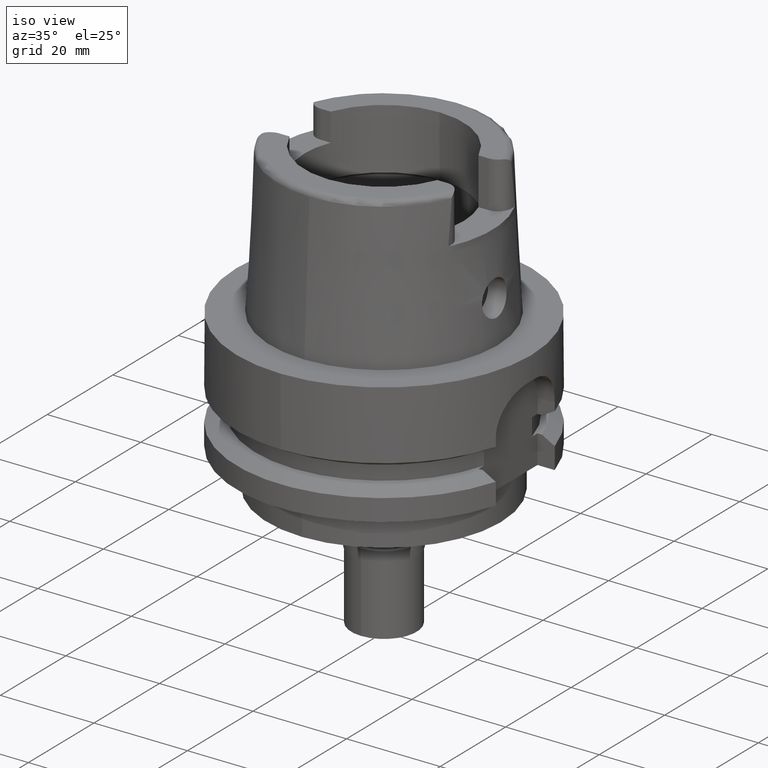
[diagram: clean part render]
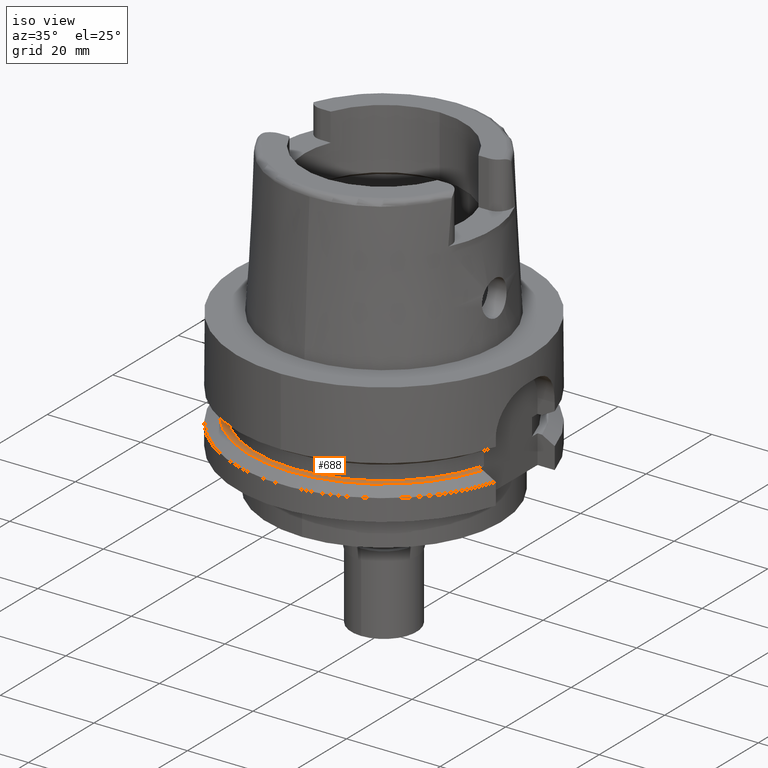
[diagram: same view with one face highlighted and labeled with its STEP entity id]
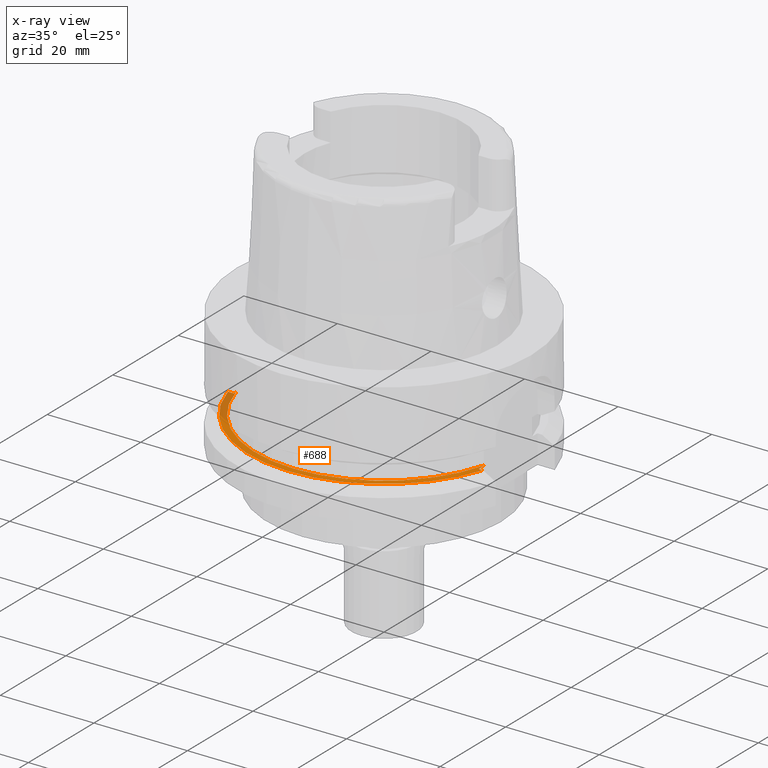
[diagram: x-ray of the same camera — body ghosted, the highlighted face saturated]
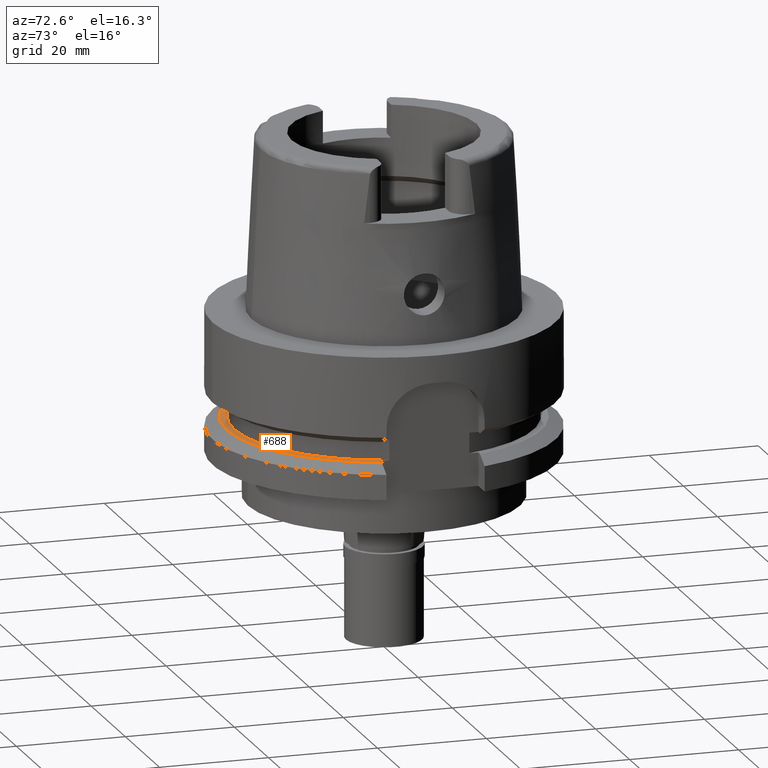
[diagram: same view with one face highlighted and labeled with its STEP entity id]
A machine part, iso view. The second image highlights one B-rep face of the part: STEP entity #688.
The next image is the same camera in x-ray: the body ghosted, the highlighted face saturated — about 15% of this face is hidden behind the body in this view.
A second angle (auxiliary view) of the same face is appended — the face is thin or edge-on in the first view.
In plain terms, the highlighted planar face has unit normal (0, 0, -1).
Its self-contained STEP definition (entity closure, byte-faithful):
#33 = EDGE_LOOP ( 'NONE', ( #2241, #4317, #1091, #2222, #1945, #3135 ) ) ;
#183 = CARTESIAN_POINT ( 'NONE',  ( -26.50000000000000000, -7.348469228349999938, -19.87500000000000000 ) ) ;
#317 = VERTEX_POINT ( 'NONE', #3697 ) ;
#451 = DIRECTION ( 'NONE',  ( -2.366280491871000116E-14, 1.000000000000000000, 0.0000000000000000000 ) ) ;
#476 = EDGE_CURVE ( 'NONE', #4747, #317, #4617, .T. ) ;
#540 = DIRECTION ( 'NONE',  ( 0.0000000000000000000, 0.0000000000000000000, -1.000000000000000000 ) ) ;
#570 = VECTOR ( 'NONE', #5339, 1000.000000000000000 ) ;
#581 = AXIS2_PLACEMENT_3D ( 'NONE', #3927, #5185, #4778 ) ;
#688 = ADVANCED_FACE ( 'NONE', ( #3495 ), #1850, .F. ) ;
#1091 = ORIENTED_EDGE ( 'NONE', *, *, #2513, .F. ) ;
#1137 = VERTEX_POINT ( 'NONE', #2064 ) ;
#1183 = VECTOR ( 'NONE', #4705, 1000.000000000000114 ) ;
#1195 = CIRCLE ( 'NONE', #581, 27.50000000000000000 ) ;
#1268 = LINE ( 'NONE', #3010, #1183 ) ;
#1316 = EDGE_CURVE ( 'NONE', #2112, #5514, #1874, .T. ) ;
#1354 = DIRECTION ( 'NONE',  ( 0.0000000000000000000, 0.0000000000000000000, -1.000000000000000000 ) ) ;
#1502 = DIRECTION ( 'NONE',  ( 0.0000000000000000000, -1.000000000000000000, 0.0000000000000000000 ) ) ;
#1706 = CARTESIAN_POINT ( 'NONE',  ( 26.50000000000000000, -9.000000000000000000, -19.87500000000000000 ) ) ;
#1850 = PLANE ( 'NONE',  #4633 ) ;
#1874 = LINE ( 'NONE', #4421, #5201 ) ;
#1929 = DIRECTION ( 'NONE',  ( 5.998158823386000371E-14, 1.000000000000000000, 1.090574331525000085E-14 ) ) ;
#1945 = ORIENTED_EDGE ( 'NONE', *, *, #4366, .F. ) ;
#1963 = EDGE_CURVE ( 'NONE', #2112, #4465, #1268, .T. ) ;
#2064 = CARTESIAN_POINT ( 'NONE',  ( 27.46035060384999937, -9.000000205979000967, -19.87500000000000000 ) ) ;
#2112 = VERTEX_POINT ( 'NONE', #2481 ) ;
#2222 = ORIENTED_EDGE ( 'NONE', *, *, #476, .T. ) ;
#2241 = ORIENTED_EDGE ( 'NONE', *, *, #1963, .T. ) ;
#2481 = CARTESIAN_POINT ( 'NONE',  ( -26.50000000000000000, -8.000000000000000000, -19.87500000000000000 ) ) ;
#2513 = EDGE_CURVE ( 'NONE', #4747, #1137, #2726, .T. ) ;
#2704 = CARTESIAN_POINT ( 'NONE',  ( 26.50000000000000000, -9.000000000000000000, -19.87500000000000000 ) ) ;
#2726 = LINE ( 'NONE', #4876, #570 ) ;
#3010 = CARTESIAN_POINT ( 'NONE',  ( -26.50000000000000000, -8.000000000000000000, -19.87500000000000000 ) ) ;
#3135 = ORIENTED_EDGE ( 'NONE', *, *, #1316, .F. ) ;
#3359 = CARTESIAN_POINT ( 'NONE',  ( -27.76816544269999909, -8.000000000000000000, -19.87500000000000000 ) ) ;
#3495 = FACE_OUTER_BOUND ( 'NONE', #33, .T. ) ;
#3616 = DIRECTION ( 'NONE',  ( 0.0000000000000000000, -1.000000000000000000, 0.0000000000000000000 ) ) ;
#3673 = CIRCLE ( 'NONE', #5278, 28.89759526419000224 ) ;
#3680 = VECTOR ( 'NONE', #451, 1000.000000000000000 ) ;
#3697 = CARTESIAN_POINT ( 'NONE',  ( 26.50000000000000000, -7.348469228349999938, -19.87500000000000000 ) ) ;
#3927 = CARTESIAN_POINT ( 'NONE',  ( 0.0000000000000000000, 0.0000000000000000000, -19.87500000000000000 ) ) ;
#4317 = ORIENTED_EDGE ( 'NONE', *, *, #4926, .F. ) ;
#4366 = EDGE_CURVE ( 'NONE', #5514, #317, #1195, .T. ) ;
#4421 = CARTESIAN_POINT ( 'NONE',  ( -26.50000000000000000, -8.000000000000000000, -19.87500000000000000 ) ) ;
#4465 = VERTEX_POINT ( 'NONE', #3359 ) ;
#4617 = LINE ( 'NONE', #1706, #3680 ) ;
#4633 = AXIS2_PLACEMENT_3D ( 'NONE', #5227, #1354, #3616 ) ;
#4705 = DIRECTION ( 'NONE',  ( -0.9999999999999215072, 3.959404086856082485E-07, 5.939057325660126490E-13 ) ) ;
#4747 = VERTEX_POINT ( 'NONE', #2704 ) ;
#4778 = DIRECTION ( 'NONE',  ( 0.0000000000000000000, -1.000000000000000000, 0.0000000000000000000 ) ) ;
#4876 = CARTESIAN_POINT ( 'NONE',  ( 26.50000000000000000, -9.000000000000000000, -19.87500000000000000 ) ) ;
#4926 = EDGE_CURVE ( 'NONE', #1137, #4465, #3673, .T. ) ;
#5185 = DIRECTION ( 'NONE',  ( 0.0000000000000000000, 0.0000000000000000000, 1.000000000000000000 ) ) ;
#5201 = VECTOR ( 'NONE', #1929, 1000.000000000000000 ) ;
#5227 = CARTESIAN_POINT ( 'NONE',  ( 0.0000000000000000000, 0.0000000000000000000, -19.87500000000000000 ) ) ;
#5278 = AXIS2_PLACEMENT_3D ( 'NONE', #5395, #540, #1502 ) ;
#5339 = DIRECTION ( 'NONE',  ( 0.9999999999999770184, -2.144828758958950210E-07, 7.842711785527820508E-13 ) ) ;
#5395 = CARTESIAN_POINT ( 'NONE',  ( 0.0000000000000000000, 0.0000000000000000000, -19.87500000000000000 ) ) ;
#5514 = VERTEX_POINT ( 'NONE', #183 ) ;